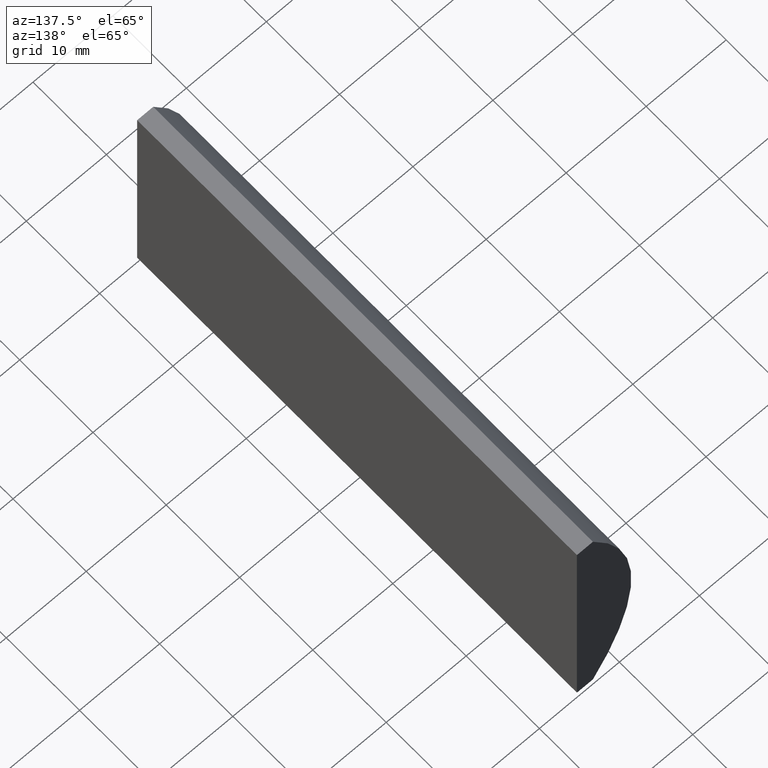
[diagram: clean part render]
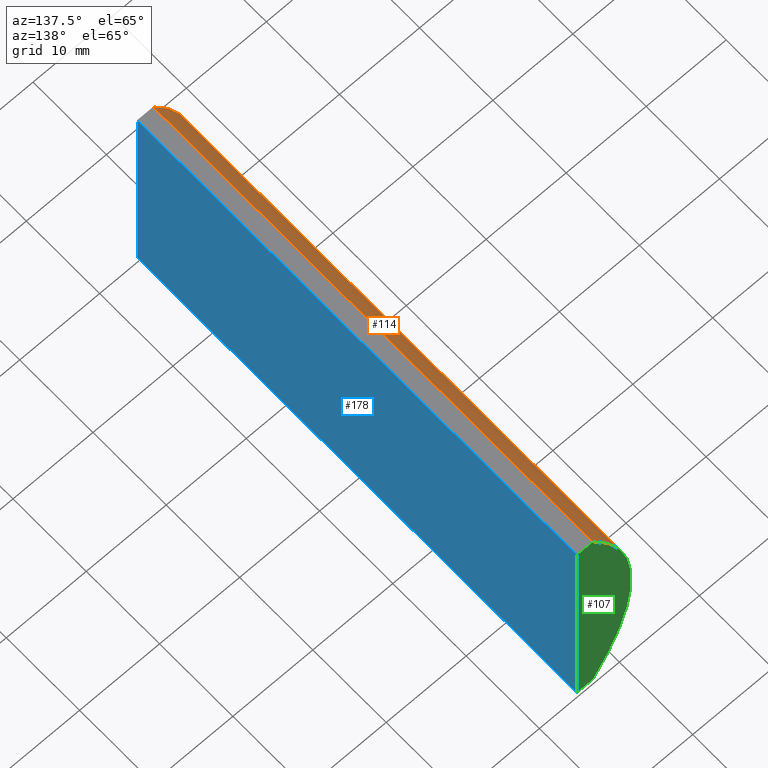
[diagram: same view with three faces highlighted in distinct colors, each labeled with its STEP entity id]
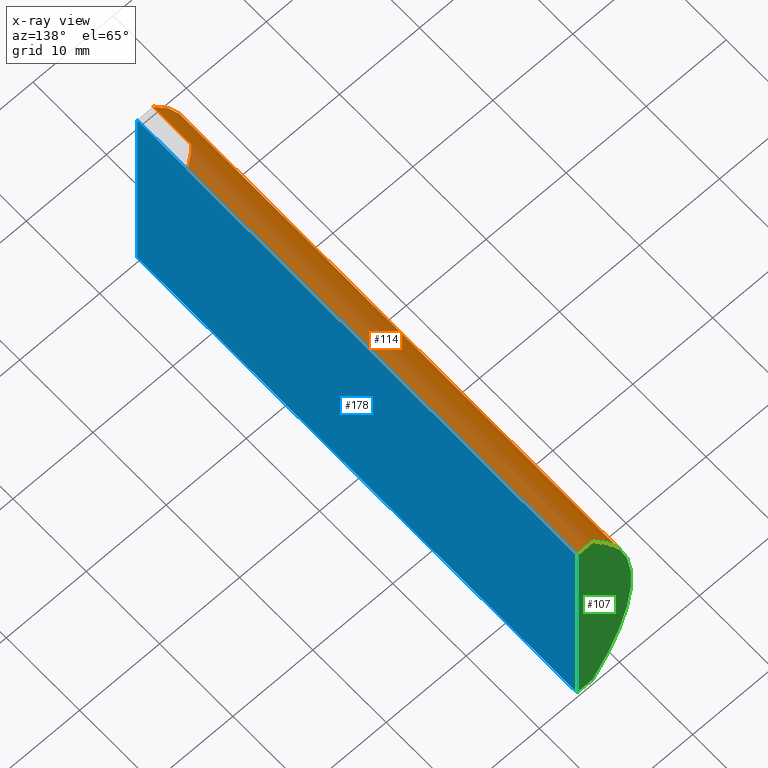
[diagram: x-ray of the same camera — body ghosted, the three highlighted faces saturated]
A machine part, auxiliary view with three faces highlighted in distinct colors.
The next image is the same camera in x-ray (body ghosted, the three faces saturated) — at least one of them is partly hidden behind the body in this view.
Their STEP definitions:

[orange] entity #114 — the highlighted cylindrical surface (partial cylindrical patch) has radius 25.85 mm, axis along (-0, -1, -0).
#9 = DIRECTION ( 'NONE',  ( -0.0000000000000000000, -1.000000000000000000, -0.0000000000000000000 ) ) ;
#11 = FACE_OUTER_BOUND ( 'NONE', #79, .T. ) ;
#14 = EDGE_CURVE ( 'NONE', #170, #146, #80, .T. ) ;
#20 = EDGE_CURVE ( 'NONE', #170, #65, #34, .T. ) ;
#23 = CARTESIAN_POINT ( 'NONE',  ( 4.355204334851265500, 60.00000000000000000, 4.286263797015675000E-017 ) ) ;
#29 = DIRECTION ( 'NONE',  ( 0.0000000000000000000, 0.0000000000000000000, -1.000000000000000000 ) ) ;
#34 = CIRCLE ( 'NONE', #148, 25.84999999999999800 ) ;
#40 = CARTESIAN_POINT ( 'NONE',  ( -16.69764582848766200, 60.00000000000000000, -15.00000000000000000 ) ) ;
#60 = AXIS2_PLACEMENT_3D ( 'NONE', #23, #9, #29 ) ;
#65 = VERTEX_POINT ( 'NONE', #73 ) ;
#69 = DIRECTION ( 'NONE',  ( 0.0000000000000000000, 1.000000000000000000, 0.0000000000000000000 ) ) ;
#70 = DIRECTION ( 'NONE',  ( -0.0000000000000000000, -1.000000000000000000, -0.0000000000000000000 ) ) ;
#73 = CARTESIAN_POINT ( 'NONE',  ( -16.69764582848766200, 60.00000000000000000, 15.00000000000000000 ) ) ;
#76 = CARTESIAN_POINT ( 'NONE',  ( 4.355204334851265500, 0.0000000000000000000, 4.286263797015675000E-017 ) ) ;
#79 = EDGE_LOOP ( 'NONE', ( #89, #202, #161, #133 ) ) ;
#80 = LINE ( 'NONE', #40, #120 ) ;
#86 = CARTESIAN_POINT ( 'NONE',  ( -16.69764582848766200, 0.0000000000000000000, -15.00000000000000000 ) ) ;
#89 = ORIENTED_EDGE ( 'NONE', *, *, #116, .T. ) ;
#98 = EDGE_CURVE ( 'NONE', #65, #168, #124, .T. ) ;
#114 = ADVANCED_FACE ( 'NONE', ( #11 ), #149, .T. ) ;
#116 = EDGE_CURVE ( 'NONE', #146, #168, #143, .T. ) ;
#118 = AXIS2_PLACEMENT_3D ( 'NONE', #76, #69, #192 ) ;
#120 = VECTOR ( 'NONE', #187, 1000.000000000000000 ) ;
#124 = LINE ( 'NONE', #158, #203 ) ;
#132 = DIRECTION ( 'NONE',  ( 0.0000000000000000000, 0.0000000000000000000, 1.000000000000000000 ) ) ;
#133 = ORIENTED_EDGE ( 'NONE', *, *, #14, .T. ) ;
#137 = CARTESIAN_POINT ( 'NONE',  ( -16.69764582848766200, 60.00000000000000000, -15.00000000000000000 ) ) ;
#143 = CIRCLE ( 'NONE', #118, 25.84999999999999800 ) ;
#146 = VERTEX_POINT ( 'NONE', #86 ) ;
#148 = AXIS2_PLACEMENT_3D ( 'NONE', #154, #167, #132 ) ;
#149 = CYLINDRICAL_SURFACE ( 'NONE', #60, 25.84999999999999800 ) ;
#154 = CARTESIAN_POINT ( 'NONE',  ( 4.355204334851265500, 60.00000000000000000, 4.286263797015675000E-017 ) ) ;
#158 = CARTESIAN_POINT ( 'NONE',  ( -16.69764582848766200, 60.00000000000000000, 15.00000000000000000 ) ) ;
#161 = ORIENTED_EDGE ( 'NONE', *, *, #20, .F. ) ;
#163 = CARTESIAN_POINT ( 'NONE',  ( -16.69764582848766200, 0.0000000000000000000, 15.00000000000000000 ) ) ;
#167 = DIRECTION ( 'NONE',  ( 0.0000000000000000000, 1.000000000000000000, 0.0000000000000000000 ) ) ;
#168 = VERTEX_POINT ( 'NONE', #163 ) ;
#170 = VERTEX_POINT ( 'NONE', #137 ) ;
#187 = DIRECTION ( 'NONE',  ( -0.0000000000000000000, -1.000000000000000000, -0.0000000000000000000 ) ) ;
#192 = DIRECTION ( 'NONE',  ( 0.0000000000000000000, 0.0000000000000000000, 1.000000000000000000 ) ) ;
#202 = ORIENTED_EDGE ( 'NONE', *, *, #98, .F. ) ;
#203 = VECTOR ( 'NONE', #70, 1000.000000000000000 ) ;

[blue] entity #178 — the highlighted planar face has unit normal (-1, 0, 0).
#1 = PLANE ( 'NONE',  #10 ) ;
#8 = DIRECTION ( 'NONE',  ( -0.0000000000000000000, -1.000000000000000000, -0.0000000000000000000 ) ) ;
#10 = AXIS2_PLACEMENT_3D ( 'NONE', #141, #197, #119 ) ;
#13 = DIRECTION ( 'NONE',  ( -2.891205793294678800E-016, -0.0000000000000000000, -1.000000000000000000 ) ) ;
#15 = DIRECTION ( 'NONE',  ( -2.891205793294678800E-016, -0.0000000000000000000, -1.000000000000000000 ) ) ;
#16 = LINE ( 'NONE', #46, #62 ) ;
#27 = CARTESIAN_POINT ( 'NONE',  ( -14.69479566514873300, 60.00000000000000000, 15.00000000000000000 ) ) ;
#38 = CARTESIAN_POINT ( 'NONE',  ( -14.69479566514874200, 60.00000000000000000, -15.00000000000000000 ) ) ;
#41 = VECTOR ( 'NONE', #13, 1000.000000000000000 ) ;
#42 = CARTESIAN_POINT ( 'NONE',  ( -14.69479566514874200, 60.00000000000000000, -15.00000000000000000 ) ) ;
#44 = ORIENTED_EDGE ( 'NONE', *, *, #164, .T. ) ;
#45 = LINE ( 'NONE', #42, #175 ) ;
#46 = CARTESIAN_POINT ( 'NONE',  ( -14.69479566514873300, 60.00000000000000000, 15.00000000000000000 ) ) ;
#47 = EDGE_CURVE ( 'NONE', #145, #95, #45, .T. ) ;
#62 = VECTOR ( 'NONE', #123, 1000.000000000000000 ) ;
#68 = ORIENTED_EDGE ( 'NONE', *, *, #47, .F. ) ;
#84 = CARTESIAN_POINT ( 'NONE',  ( -14.69479566514874200, 0.0000000000000000000, -15.00000000000000000 ) ) ;
#92 = ORIENTED_EDGE ( 'NONE', *, *, #174, .F. ) ;
#94 = EDGE_LOOP ( 'NONE', ( #44, #68, #92, #110 ) ) ;
#95 = VERTEX_POINT ( 'NONE', #84 ) ;
#99 = VECTOR ( 'NONE', #15, 1000.000000000000000 ) ;
#110 = ORIENTED_EDGE ( 'NONE', *, *, #142, .T. ) ;
#112 = LINE ( 'NONE', #160, #41 ) ;
#119 = DIRECTION ( 'NONE',  ( 2.891205793294678800E-016, 0.0000000000000000000, 1.000000000000000000 ) ) ;
#123 = DIRECTION ( 'NONE',  ( -0.0000000000000000000, -1.000000000000000000, -0.0000000000000000000 ) ) ;
#141 = CARTESIAN_POINT ( 'NONE',  ( -14.69479566514874200, 60.00000000000000000, -15.00000000000000000 ) ) ;
#142 = EDGE_CURVE ( 'NONE', #199, #186, #16, .T. ) ;
#145 = VERTEX_POINT ( 'NONE', #153 ) ;
#153 = CARTESIAN_POINT ( 'NONE',  ( -14.69479566514874200, 60.00000000000000000, -15.00000000000000000 ) ) ;
#156 = FACE_OUTER_BOUND ( 'NONE', #94, .T. ) ;
#160 = CARTESIAN_POINT ( 'NONE',  ( -14.69479566514874200, 0.0000000000000000000, -15.00000000000000000 ) ) ;
#164 = EDGE_CURVE ( 'NONE', #186, #95, #112, .T. ) ;
#174 = EDGE_CURVE ( 'NONE', #199, #145, #201, .T. ) ;
#175 = VECTOR ( 'NONE', #8, 1000.000000000000000 ) ;
#178 = ADVANCED_FACE ( 'NONE', ( #156 ), #1, .F. ) ;
#184 = CARTESIAN_POINT ( 'NONE',  ( -14.69479566514873300, 0.0000000000000000000, 15.00000000000000000 ) ) ;
#186 = VERTEX_POINT ( 'NONE', #184 ) ;
#197 = DIRECTION ( 'NONE',  ( -1.000000000000000000, 0.0000000000000000000, 2.891205793294678800E-016 ) ) ;
#199 = VERTEX_POINT ( 'NONE', #27 ) ;
#201 = LINE ( 'NONE', #38, #99 ) ;

[green] entity #107 — the highlighted planar face has unit normal (0, 1, 0).
#15 = DIRECTION ( 'NONE',  ( -2.891205793294678800E-016, -0.0000000000000000000, -1.000000000000000000 ) ) ;
#19 = ORIENTED_EDGE ( 'NONE', *, *, #169, .T. ) ;
#20 = EDGE_CURVE ( 'NONE', #170, #65, #34, .T. ) ;
#21 = DIRECTION ( 'NONE',  ( -1.000000000000000000, -0.0000000000000000000, -0.0000000000000000000 ) ) ;
#27 = CARTESIAN_POINT ( 'NONE',  ( -14.69479566514873300, 60.00000000000000000, 15.00000000000000000 ) ) ;
#34 = CIRCLE ( 'NONE', #148, 25.84999999999999800 ) ;
#36 = ORIENTED_EDGE ( 'NONE', *, *, #106, .T. ) ;
#38 = CARTESIAN_POINT ( 'NONE',  ( -14.69479566514874200, 60.00000000000000000, -15.00000000000000000 ) ) ;
#52 = ORIENTED_EDGE ( 'NONE', *, *, #174, .T. ) ;
#54 = DIRECTION ( 'NONE',  ( 0.0000000000000000000, 1.000000000000000000, 0.0000000000000000000 ) ) ;
#59 = LINE ( 'NONE', #194, #147 ) ;
#65 = VERTEX_POINT ( 'NONE', #73 ) ;
#73 = CARTESIAN_POINT ( 'NONE',  ( -16.69764582848766200, 60.00000000000000000, 15.00000000000000000 ) ) ;
#77 = CARTESIAN_POINT ( 'NONE',  ( 4.355204334851265500, 60.00000000000000000, 4.286263797015675000E-017 ) ) ;
#83 = DIRECTION ( 'NONE',  ( 1.000000000000000000, 0.0000000000000000000, 0.0000000000000000000 ) ) ;
#97 = VECTOR ( 'NONE', #83, 1000.000000000000000 ) ;
#99 = VECTOR ( 'NONE', #15, 1000.000000000000000 ) ;
#100 = CARTESIAN_POINT ( 'NONE',  ( -16.69764582848766200, 60.00000000000000000, 15.00000000000000000 ) ) ;
#106 = EDGE_CURVE ( 'NONE', #65, #199, #185, .T. ) ;
#107 = ADVANCED_FACE ( 'NONE', ( #180 ), #134, .T. ) ;
#131 = ORIENTED_EDGE ( 'NONE', *, *, #20, .T. ) ;
#132 = DIRECTION ( 'NONE',  ( 0.0000000000000000000, 0.0000000000000000000, 1.000000000000000000 ) ) ;
#134 = PLANE ( 'NONE',  #177 ) ;
#137 = CARTESIAN_POINT ( 'NONE',  ( -16.69764582848766200, 60.00000000000000000, -15.00000000000000000 ) ) ;
#140 = EDGE_LOOP ( 'NONE', ( #131, #36, #52, #19 ) ) ;
#145 = VERTEX_POINT ( 'NONE', #153 ) ;
#147 = VECTOR ( 'NONE', #21, 1000.000000000000000 ) ;
#148 = AXIS2_PLACEMENT_3D ( 'NONE', #154, #167, #132 ) ;
#153 = CARTESIAN_POINT ( 'NONE',  ( -14.69479566514874200, 60.00000000000000000, -15.00000000000000000 ) ) ;
#154 = CARTESIAN_POINT ( 'NONE',  ( 4.355204334851265500, 60.00000000000000000, 4.286263797015675000E-017 ) ) ;
#167 = DIRECTION ( 'NONE',  ( 0.0000000000000000000, 1.000000000000000000, 0.0000000000000000000 ) ) ;
#169 = EDGE_CURVE ( 'NONE', #145, #170, #59, .T. ) ;
#170 = VERTEX_POINT ( 'NONE', #137 ) ;
#174 = EDGE_CURVE ( 'NONE', #199, #145, #201, .T. ) ;
#177 = AXIS2_PLACEMENT_3D ( 'NONE', #77, #54, #195 ) ;
#180 = FACE_OUTER_BOUND ( 'NONE', #140, .T. ) ;
#185 = LINE ( 'NONE', #100, #97 ) ;
#194 = CARTESIAN_POINT ( 'NONE',  ( -16.69764582848766200, 60.00000000000000000, -15.00000000000000000 ) ) ;
#195 = DIRECTION ( 'NONE',  ( 0.0000000000000000000, -0.0000000000000000000, 1.000000000000000000 ) ) ;
#199 = VERTEX_POINT ( 'NONE', #27 ) ;
#201 = LINE ( 'NONE', #38, #99 ) ;